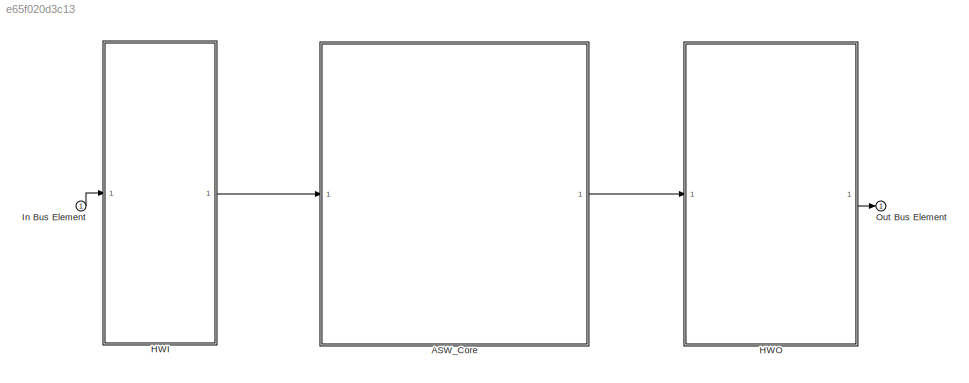
MODEL slx_e65f020d3c13
KIND model
CONFIG AbsTol = auto
CONFIG EnableMultiTasking = off
CONFIG FixedStep = auto
CONFIG MaxStep = auto
CONFIG MinStep = auto
CONFIG RelTol = 1e-3
CONFIG SampleTimeConstraint = Unconstrained
CONFIG SolverName = VariableStepAuto
CONFIG StartTime = 0.0
CONFIG StopTime = 10.0
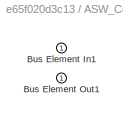
BLOCK [SubSystem] ASW_Core
  PortSchema = {"entries":[{"content":{"headerSize":26,"margin":15,"minimumSpacing":25,"sides":[{"content":{"connectorIds":["In1"]},"type":"ConnectorPlacement.EquallySpacedRectSide","uuid":"787b713c-96fc-4f04-bd34-eacd96d6b284"},{"content":{"connectorIds":["Out1"],"side":"RIGHT"},"type":"ConnectorPlacement.EquallySpacedRectSide","uuid":"0581bb5c-a04b-462f-8f37-3abdcbbefe9c"},{"content":{"connectorIds":[],"side":...<+432ch>  <repeated x3 — deduplicated; at blocks: ASW_Core, HWI, HWO>
  Ports = [1, 1]
  RequestExecContextInheritance = off
BLOCK [Inport] ASW_Core/Bus Element In1
BLOCK [Outport] ASW_Core/Bus Element Out1
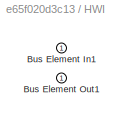
BLOCK [SubSystem] HWI
  Ports = [1, 1]
  RequestExecContextInheritance = off
BLOCK [Inport] HWI/Bus Element In1
BLOCK [Outport] HWI/Bus Element Out1
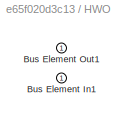
BLOCK [SubSystem] HWO
  Ports = [1, 1]
  RequestExecContextInheritance = off
BLOCK [Inport] HWO/Bus Element In1
BLOCK [Outport] HWO/Bus Element Out1
BLOCK [Inport] In Bus Element
BLOCK [Outport] Out Bus Element
LINE ASW_Core:1 -> HWO:1
LINE HWI:1 -> ASW_Core:1
LINE HWO:1 -> Out Bus Element:1
LINE In Bus Element:1 -> HWI:1
